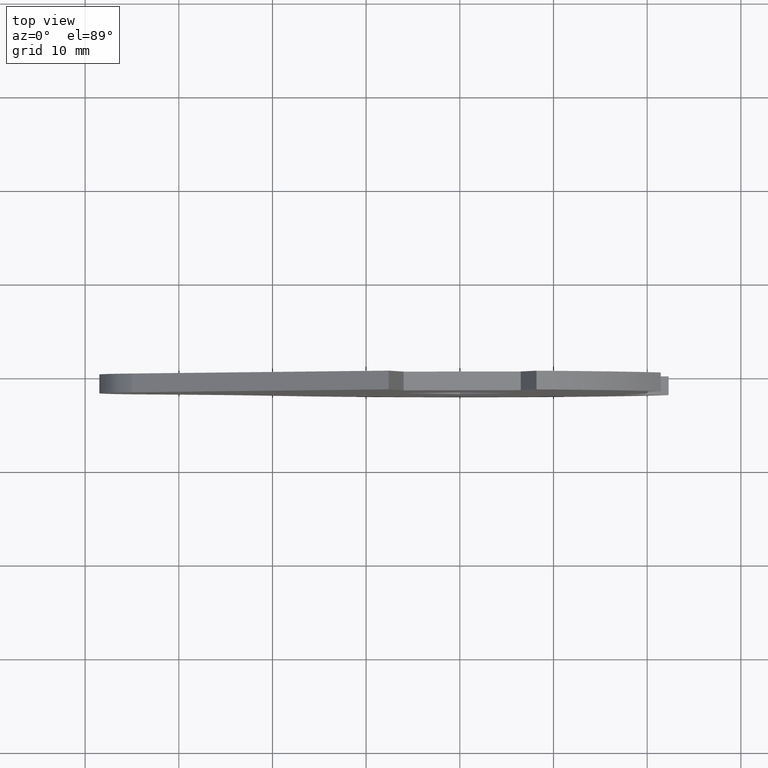
[diagram: clean part render]
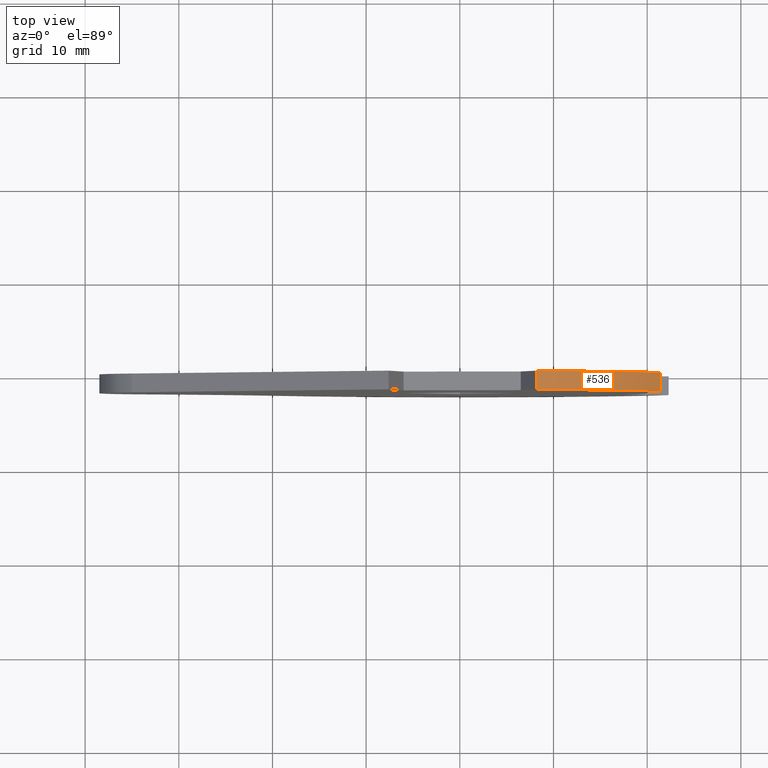
[diagram: same view with one face highlighted and labeled with its STEP entity id]
A machine part, top view. The second image highlights one B-rep face of the part: STEP entity #536.
In plain terms, the highlighted face is a freeform B-spline surface patch.
Its self-contained STEP definition (entity closure, byte-faithful):
#104=CARTESIAN_POINT('',(8.182980201324261,0.0,23.622845616579198));
#105=VERTEX_POINT('',#104);
#111=CARTESIAN_POINT('',(21.447462022705601,0.0,12.845480636574161));
#112=VERTEX_POINT('',#111);
#113=CARTESIAN_POINT('',(21.447462022705590,0.0,12.845480636574150));
#114=CARTESIAN_POINT('',(16.775225539792963,0.0,20.646482199960836));
#115=CARTESIAN_POINT('',(8.182980201324261,0.0,23.622845616579209));
#123=(BOUNDED_CURVE()B_SPLINE_CURVE(2,(#113,#114,#115),.UNSPECIFIED.,.F.,.U.)CURVE()GEOMETRIC_REPRESENTATION_ITEM()QUASI_UNIFORM_CURVE()RATIONAL_B_SPLINE_CURVE((1.0,0.939766338213495,1.0))REPRESENTATION_ITEM(''));
#124=EDGE_CURVE('',#112,#105,#123,.T.);
#264=CARTESIAN_POINT('',(21.447462022705601,-2.0,12.845480636574161));
#265=VERTEX_POINT('',#264);
#271=CARTESIAN_POINT('',(8.182980201324261,-2.0,23.622845616579198));
#272=VERTEX_POINT('',#271);
#273=CARTESIAN_POINT('',(21.447462022705590,-2.0,12.845480636574150));
#274=CARTESIAN_POINT('',(16.775225539792963,-2.000000000000000,20.646482199960836));
#275=CARTESIAN_POINT('',(8.182980201324261,-2.0,23.622845616579209));
#283=(BOUNDED_CURVE()B_SPLINE_CURVE(2,(#273,#274,#275),.UNSPECIFIED.,.F.,.U.)CURVE()GEOMETRIC_REPRESENTATION_ITEM()QUASI_UNIFORM_CURVE()RATIONAL_B_SPLINE_CURVE((1.0,0.939766338213495,1.0))REPRESENTATION_ITEM(''));
#284=EDGE_CURVE('',#265,#272,#283,.T.);
#502=CARTESIAN_POINT('',(21.447462022705601,-2.0,12.845480636574161));
#503=CARTESIAN_POINT('',(21.447462022705601,0.0,12.845480636574161));
#504=QUASI_UNIFORM_CURVE('',1,(#502,#503),.UNSPECIFIED.,.F.,.U.);
#505=EDGE_CURVE('',#265,#112,#504,.T.);
#512=CARTESIAN_POINT('',(21.781660936335580,-2.050000000000000,12.270258630302470));
#513=CARTESIAN_POINT('',(21.781660936335580,0.051250000000000,12.270258630302470));
#514=CARTESIAN_POINT('',(16.891311125709393,-2.050000000000000,20.951407467057390));
#515=CARTESIAN_POINT('',(16.891311125709393,0.051250000000000,20.951407467057390));
#516=CARTESIAN_POINT('',(7.370326010601203,-2.050000000000000,23.888873864153886));
#517=CARTESIAN_POINT('',(7.370326010601203,0.051250000000000,23.888873864153886));
#525=(BOUNDED_SURFACE()B_SPLINE_SURFACE(1,2,((#512,#514,#516),(#513,#515,#517)),.UNSPECIFIED.,.F.,.F.,.U.)B_SPLINE_SURFACE_WITH_KNOTS((2,2),(3,3),(0.0,2.101250000000000),(0.0,19.193447092224581),.UNSPECIFIED.)GEOMETRIC_REPRESENTATION_ITEM()RATIONAL_B_SPLINE_SURFACE(((1.0,0.924995322491587,0.991526371186921),(1.0,0.924995322491587,0.991526371186921)))REPRESENTATION_ITEM('')SURFACE());
#526=ORIENTED_EDGE('',*,*,#124,.T.);
#527=CARTESIAN_POINT('',(8.182980201324261,-2.0,23.622845616579198));
#528=CARTESIAN_POINT('',(8.182980201324261,0.0,23.622845616579198));
#529=QUASI_UNIFORM_CURVE('',1,(#527,#528),.UNSPECIFIED.,.F.,.U.);
#530=EDGE_CURVE('',#272,#105,#529,.T.);
#531=ORIENTED_EDGE('',*,*,#530,.F.);
#532=ORIENTED_EDGE('',*,*,#284,.F.);
#533=ORIENTED_EDGE('',*,*,#505,.T.);
#534=EDGE_LOOP('',(#526,#531,#532,#533));
#535=FACE_OUTER_BOUND('',#534,.T.);
#536=ADVANCED_FACE('',(#535),#525,.T.);